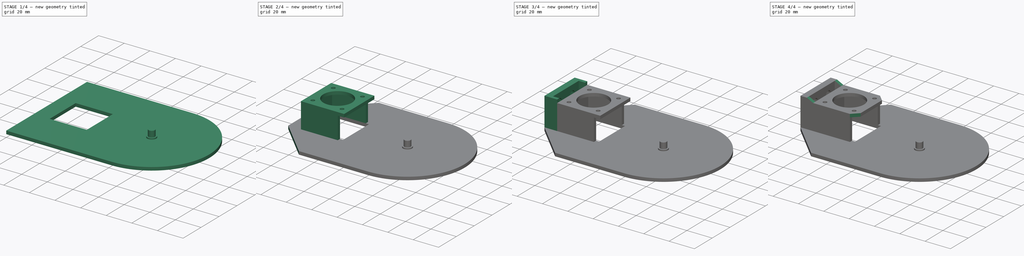
[diagram: build sequence overview — one tinted view per stage of 4, left to right]
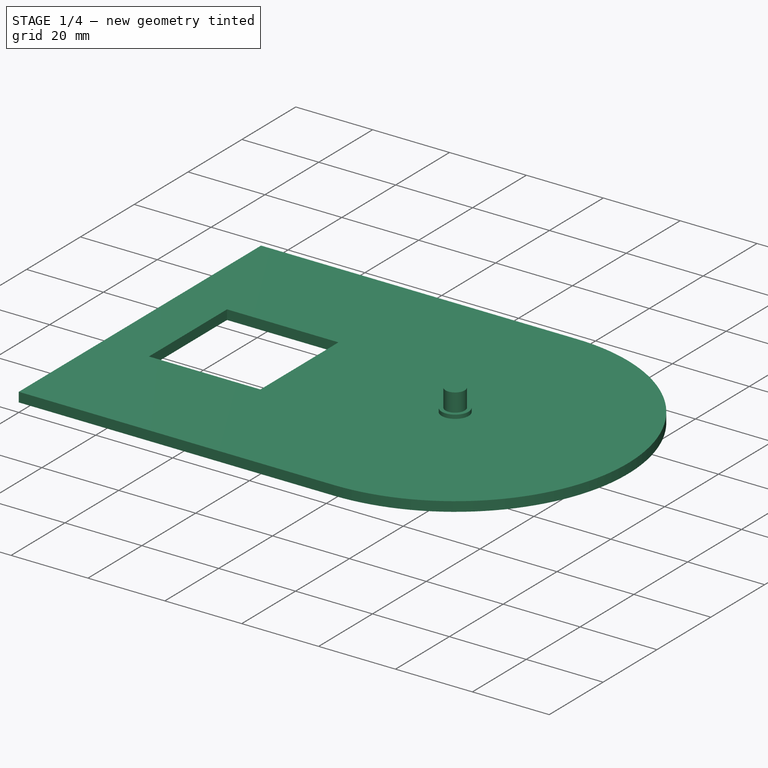
[diagram: stage 1 of 4 — iso view after this stage's code; geometry added in this stage tinted green]
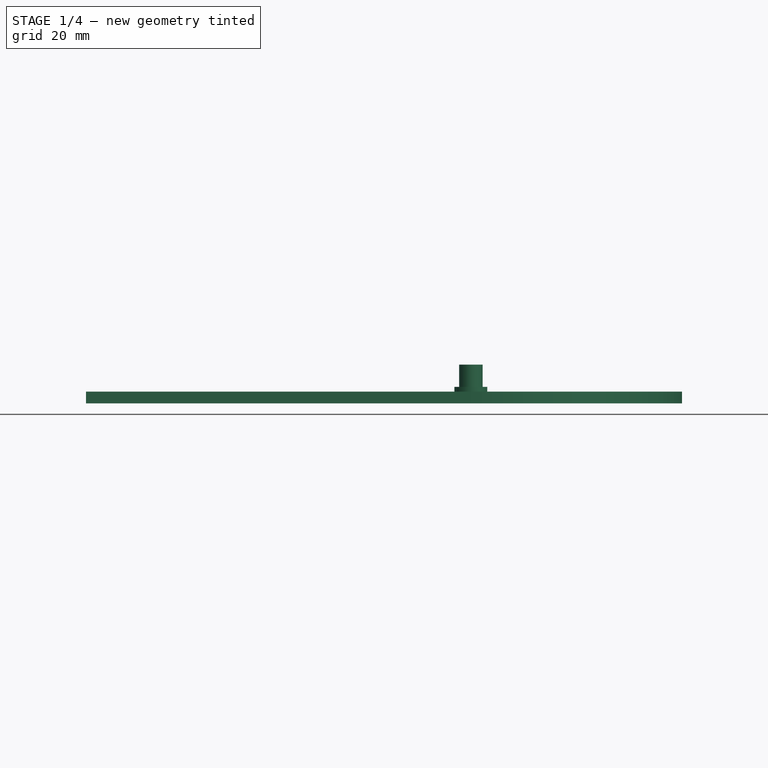
[diagram: stage 1 of 4 — front view after this stage's code; geometry added in this stage tinted green]
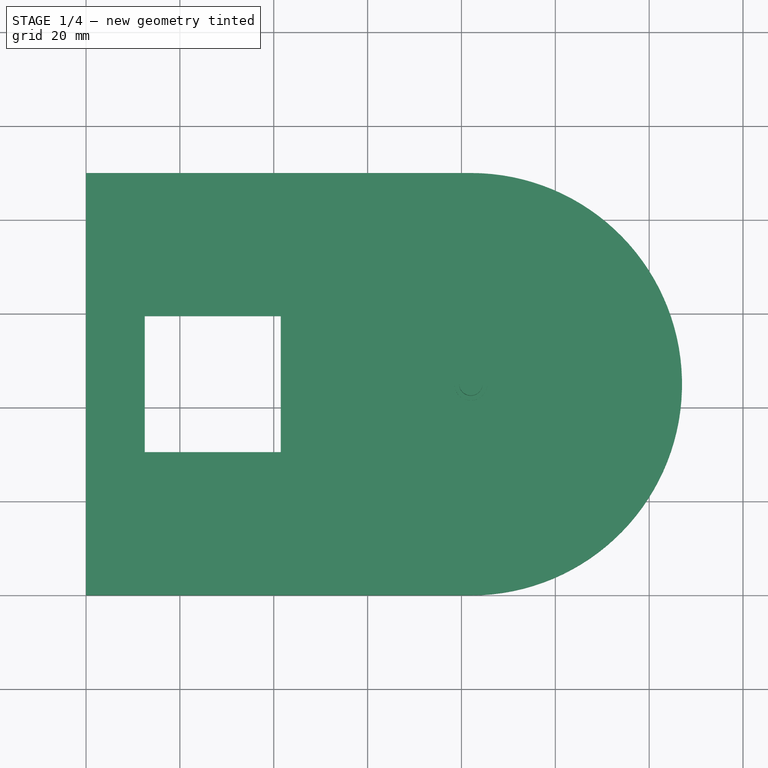
[diagram: stage 1 of 4 — top view after this stage's code; geometry added in this stage tinted green]
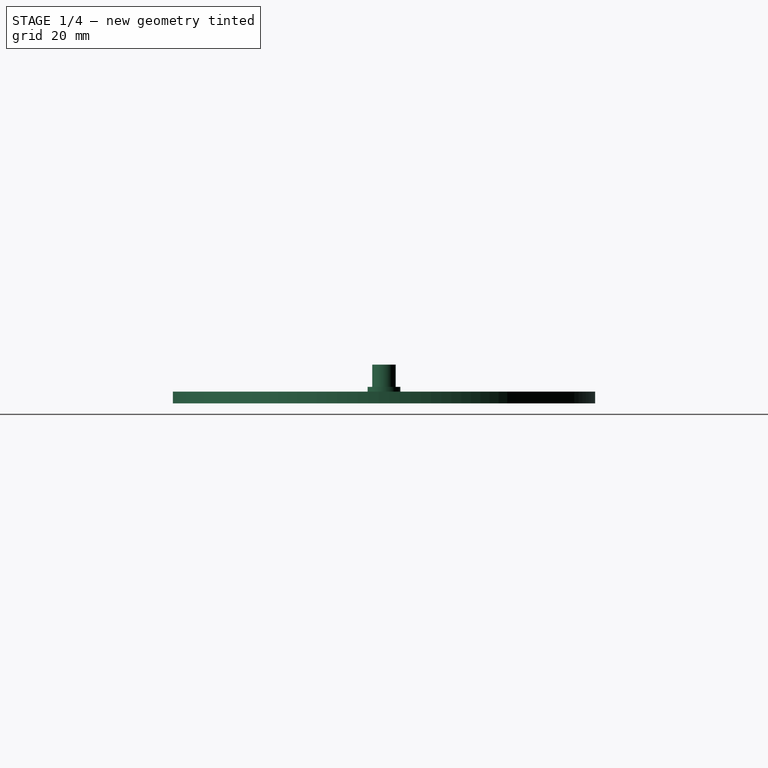
[diagram: stage 1 of 4 — right view after this stage's code; geometry added in this stage tinted green]
FCSTD DOCUMENT  (FreeCAD 0.19R)
Label: c-axis-motor-mount
License: All rights reserved
LicenseURL: http://en.wikipedia.org/wiki/All_rights_reserved
objects: Sketcher::SketchObject×7, PartDesign::Pad×6, PartDesign::Chamfer×4, PartDesign::Pocket×1, PartDesign::Body×1
note: 30 computed .brp shape members not serialized (recipe doc carries the construction recipe); baked Part::Feature solids carry a one-line shape summary decoded from their .brp

FEATURE [Sketcher::SketchObject] Sketch
  FullyConstrained = true
  MapMode = 5
  Support = -> [XY_Plane]
  sketch-geometry (18):
    g0: LineSegment StartX=0 StartY=0 StartZ=0 EndX=82 EndY=0 EndZ=0
    g1: LineSegment StartX=82 StartY=0 StartZ=0 EndX=82 EndY=90 EndZ=0
    g2: LineSegment StartX=82 StartY=90 StartZ=0 EndX=0 EndY=90 EndZ=0
    g3: LineSegment StartX=0 StartY=90 StartZ=0 EndX=0 EndY=0 EndZ=0
    g4: GeomPoint X=82 Y=45 Z=0
    g5: ArcOfCircle CenterX=82 CenterY=45 CenterZ=0 NormalX=0 NormalY=0 NormalZ=1 AngleXU=0 Radius=45 StartAngle=4.71239 EndAngle=7.85398
    g6: LineSegment StartX=82 StartY=45 StartZ=0 EndX=0 EndY=45 EndZ=0
    g7: LineSegment StartX=10 StartY=62 StartZ=0 EndX=44 EndY=62 EndZ=0
    g8: LineSegment StartX=44 StartY=62 StartZ=0 EndX=44 EndY=28 EndZ=0
    g9: LineSegment StartX=44 StartY=28 StartZ=0 EndX=10 EndY=28 EndZ=0
    g10: LineSegment StartX=10 StartY=28 StartZ=0 EndX=10 EndY=62 EndZ=0
    g11: LineSegment StartX=10 StartY=28 StartZ=0 EndX=44 EndY=62 EndZ=0
    g12: LineSegment StartX=44 StartY=28 StartZ=0 EndX=10 EndY=62 EndZ=0
    g13: GeomPoint X=27 Y=45 Z=0
    g14: LineSegment StartX=41.5 StartY=59.5 StartZ=0 EndX=12.5 EndY=59.5 EndZ=0
    g15: LineSegment StartX=12.5 StartY=59.5 StartZ=0 EndX=12.5 EndY=30.5 EndZ=0
    g16: LineSegment StartX=12.5 StartY=30.5 StartZ=0 EndX=41.5 EndY=30.5 EndZ=0
    g17: LineSegment StartX=41.5 StartY=30.5 StartZ=0 EndX=41.5 EndY=59.5 EndZ=0
  constraints (48):
    c: Coincident(g0,g1)
    c: Coincident(g1,g2)
    c: Coincident(g2,g3)
    c: Coincident(g3,g0)
    c: Horizontal(g0)
    c: Horizontal(g2)
    c: Vertical(g1)
    c: Vertical(g3)
    c: Coincident(g0,g-1)
    c: Coincident(g5,g4)
    c: Coincident(g5,g2)
    c: Coincident(g5,g0)
    c: PointOnObject(g5,g1)
    c: DistanceY(g3,g3) = 90
    c: Coincident(g6,g5)
    c: PointOnObject(g6,g3)
    c: Horizontal(g6)
    c: Coincident(g7,g8)
    c: Coincident(g8,g9)
    c: Coincident(g9,g10)
    c: Coincident(g10,g7)
    c: Horizontal(g7)
    c: Horizontal(g9)
    c: Vertical(g8)
    c: Vertical(g10)
    c: Equal(g7,g10)
    c: DistanceX(g7,g7) = 34
    c: Coincident(g11,g9)
    c: Coincident(g11,g7)
    c: Coincident(g12,g8)
    c: Coincident(g12,g7)
    c: PointOnObject(g13,g11)
    c: PointOnObject(g13,g12)
    c: PointOnObject(g13,g6)
    c: DistanceX(g13,g5) = 55
    c: DistanceX(g2,g7) = 10
    c: Coincident(g14,g15)
    c: Coincident(g15,g16)
    c: Coincident(g16,g17)
    c: Coincident(g17,g14)
    c: Horizontal(g14)
    c: Horizontal(g16)
    c: Vertical(g15)
    c: Vertical(g17)
    c: PointOnObject(g15,g11)
    c: PointOnObject(g14,g11)
    c: DistanceX(g14,g14) = 29
    c: PointOnObject(g14,g12)
FEATURE [PartDesign::Pad] Pad
  Direction = (1,1,1)
  Length = 2.5
  Length2 = 100
  Profile = -> Sketch
  Type = 0
FEATURE [Sketcher::SketchObject] Sketch001
  FullyConstrained = true
  MapMode = 5
  Placement = pos=(0,0,2.5) rot=(0,0,1;0rad)
  Support = -> [Pad]
  sketch-geometry (15):
    g0: LineSegment StartX=0 StartY=0 StartZ=0 EndX=82 EndY=0 EndZ=0
    g1: LineSegment StartX=82 StartY=0 StartZ=0 EndX=82 EndY=90 EndZ=0
    g2: LineSegment StartX=82 StartY=90 StartZ=0 EndX=0 EndY=90 EndZ=0
    g3: LineSegment StartX=0 StartY=90 StartZ=0 EndX=0 EndY=0 EndZ=0
    g4: GeomPoint X=82 Y=45 Z=0
    g5: ArcOfCircle CenterX=82 CenterY=45 CenterZ=0 NormalX=0 NormalY=0 NormalZ=1 AngleXU=0 Radius=45 StartAngle=4.71239 EndAngle=7.85398
    g6: LineSegment StartX=82 StartY=45 StartZ=0 EndX=0 EndY=45 EndZ=0
    g7: LineSegment StartX=10 StartY=62 StartZ=0 EndX=44 EndY=62 EndZ=0
    g8: LineSegment StartX=44 StartY=62 StartZ=0 EndX=44 EndY=28 EndZ=0
    g9: LineSegment StartX=44 StartY=28 StartZ=0 EndX=10 EndY=28 EndZ=0
    g10: LineSegment StartX=10 StartY=28 StartZ=0 EndX=10 EndY=62 EndZ=0
    g11: LineSegment StartX=44 StartY=62 StartZ=0 EndX=10 EndY=28 EndZ=0
    g12: LineSegment StartX=10 StartY=62 StartZ=0 EndX=44 EndY=28 EndZ=0
    g13: GeomPoint X=27 Y=45 Z=0
    g14: Circle CenterX=82 CenterY=45 CenterZ=0 NormalX=0 NormalY=0 NormalZ=1 AngleXU=0 Radius=3.5
  constraints (38):
    c: Coincident(g0,g1)
    c: Coincident(g1,g2)
    c: Coincident(g2,g3)
    c: Coincident(g3,g0)
    c: Horizontal(g0)
    c: Horizontal(g2)
    c: Vertical(g1)
    c: Vertical(g3)
    c: Coincident(g0,g-1)
    c: PointOnObject(g4,g1)
    c: Coincident(g5,g4)
    c: Coincident(g5,g1)
    c: Coincident(g5,g0)
    c: DistanceY(g3,g3) = 90
    c: Coincident(g6,g4)
    c: PointOnObject(g6,g3)
    c: Horizontal(g6)
    c: Coincident(g7,g8)
    c: Coincident(g8,g9)
    c: Coincident(g9,g10)
    c: Coincident(g10,g7)
    c: Horizontal(g7)
    c: Horizontal(g9)
    c: Vertical(g8)
    c: Vertical(g10)
    c: Equal(g7,g10)
    c: Coincident(g11,g7)
    c: Coincident(g11,g9)
    c: Coincident(g12,g7)
    c: Coincident(g12,g8)
    c: PointOnObject(g13,g11)
    c: PointOnObject(g13,g12)
    c: PointOnObject(g13,g6)
    c: DistanceX(g7,g7) = 34
    c: DistanceX(g13,g4) = 55
    c: DistanceX(g2,g7) = 10
    c: Coincident(g14,g4)
    c: Diameter(g14) = 7
FEATURE [PartDesign::Pad] Pad001
  BaseFeature = -> Pad
  Direction = (1,1,1)
  Length = 1
  Length2 = 100
  Profile = -> Sketch001
  Type = 0
FEATURE [Sketcher::SketchObject] Sketch002
  FullyConstrained = true
  MapMode = 5
  Placement = pos=(0,0,3.5) rot=(0,0,1;0rad)
  Support = -> [Pad001]
  sketch-geometry (15):
    g0: LineSegment StartX=0 StartY=0 StartZ=0 EndX=82 EndY=0 EndZ=0
    g1: LineSegment StartX=82 StartY=0 StartZ=0 EndX=82 EndY=90 EndZ=0
    g2: LineSegment StartX=82 StartY=90 StartZ=0 EndX=0 EndY=90 EndZ=0
    g3: LineSegment StartX=0 StartY=90 StartZ=0 EndX=0 EndY=0 EndZ=0
    g4: GeomPoint X=82 Y=45 Z=0
    g5: ArcOfCircle CenterX=82 CenterY=45 CenterZ=0 NormalX=0 NormalY=0 NormalZ=1 AngleXU=0 Radius=45 StartAngle=4.71239 EndAngle=7.85398
    g6: LineSegment StartX=82 StartY=45 StartZ=0 EndX=0 EndY=45 EndZ=0
    g7: LineSegment StartX=10 StartY=62 StartZ=0 EndX=44 EndY=62 EndZ=0
    g8: LineSegment StartX=44 StartY=62 StartZ=0 EndX=44 EndY=28 EndZ=0
    g9: LineSegment StartX=44 StartY=28 StartZ=0 EndX=10 EndY=28 EndZ=0
    g10: LineSegment StartX=10 StartY=28 StartZ=0 EndX=10 EndY=62 EndZ=0
    g11: LineSegment StartX=10 StartY=28 StartZ=0 EndX=44 EndY=62 EndZ=0
    g12: LineSegment StartX=44 StartY=28 StartZ=0 EndX=10 EndY=62 EndZ=0
    g13: GeomPoint X=27 Y=45 Z=0
    g14: Circle CenterX=82 CenterY=45 CenterZ=0 NormalX=0 NormalY=0 NormalZ=1 AngleXU=0 Radius=2.5
  constraints (38):
    c: Coincident(g0,g1)
    c: Coincident(g1,g2)
    c: Coincident(g2,g3)
    c: Coincident(g3,g0)
    c: Horizontal(g0)
    c: Horizontal(g2)
    c: Vertical(g1)
    c: Vertical(g3)
    c: Coincident(g0,g-1)
    c: PointOnObject(g4,g1)
    c: Coincident(g5,g4)
    c: Coincident(g5,g1)
    c: Coincident(g5,g0)
    c: Coincident(g6,g4)
    c: PointOnObject(g6,g3)
    c: Horizontal(g6)
    c: DistanceY(g3,g3) = 90
    c: Coincident(g7,g8)
    c: Coincident(g8,g9)
    c: Coincident(g9,g10)
    c: Coincident(g10,g7)
    c: Horizontal(g7)
    c: Horizontal(g9)
    c: Vertical(g8)
    c: Vertical(g10)
    c: Coincident(g11,g9)
    c: Coincident(g11,g7)
    c: Coincident(g12,g8)
    c: Coincident(g12,g7)
    c: Equal(g10,g7)
    c: PointOnObject(g13,g11)
    c: PointOnObject(g13,g12)
    c: PointOnObject(g13,g6)
    c: DistanceX(g7,g7) = 34
    c: DistanceX(g13,g4) = 55
    c: DistanceX(g2,g7) = 10
    c: Coincident(g14,g4)
    c: Diameter(g14) = 5
FEATURE [PartDesign::Pad] Pad002
  BaseFeature = -> Pad001
  Direction = (1,1,1)
  Length = 4.75
  Length2 = 100
  Profile = -> Sketch002
  Type = 0
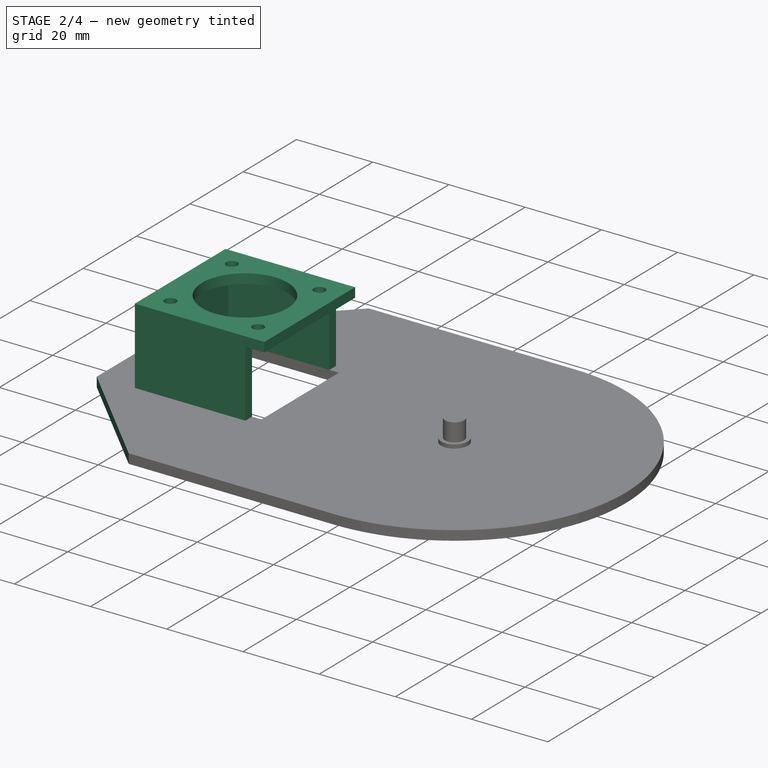
[diagram: stage 2 of 4 — iso view after this stage's code; geometry added in this stage tinted green]
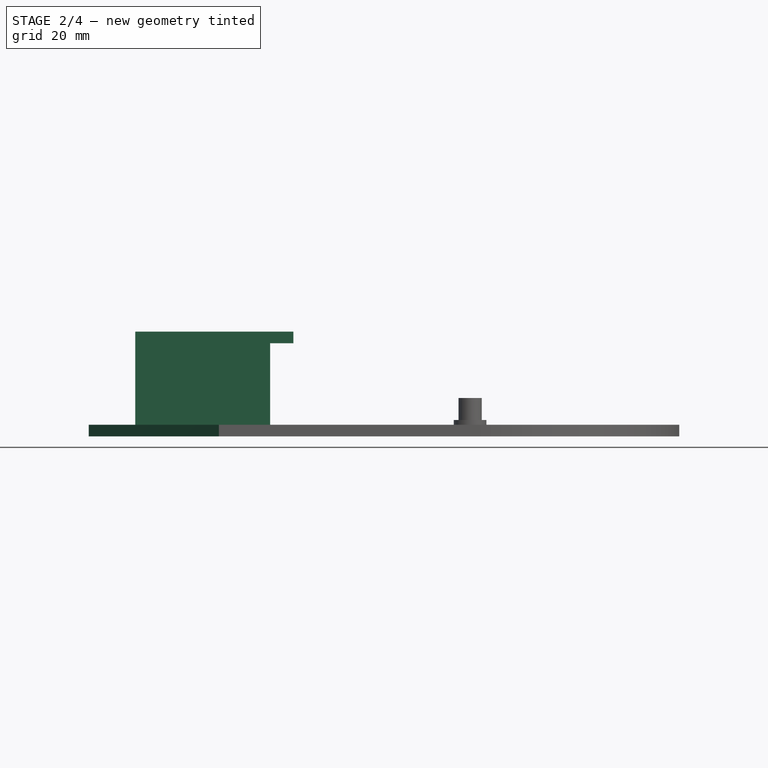
[diagram: stage 2 of 4 — front view after this stage's code; geometry added in this stage tinted green]
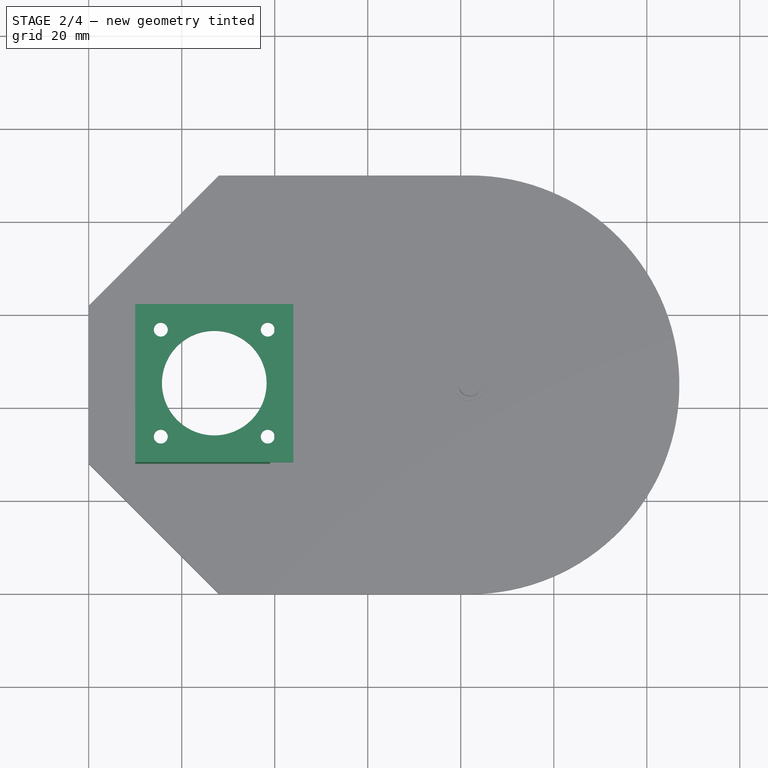
[diagram: stage 2 of 4 — top view after this stage's code; geometry added in this stage tinted green]
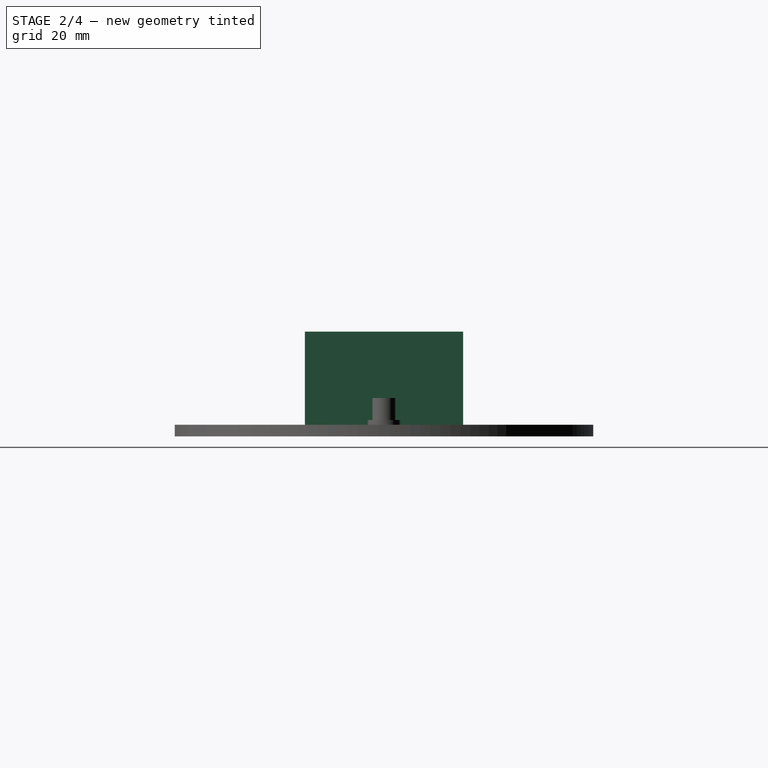
[diagram: stage 2 of 4 — right view after this stage's code; geometry added in this stage tinted green]
FEATURE [Sketcher::SketchObject] Sketch003
  FullyConstrained = true
  MapMode = 5
  Placement = pos=(0,0,2.5) rot=(0,0,1;0rad)
  Support = -> [Pad002]
  sketch-geometry (21):
    g0: LineSegment StartX=0 StartY=0 StartZ=0 EndX=82 EndY=0 EndZ=0
    g1: LineSegment StartX=82 StartY=0 StartZ=0 EndX=82 EndY=90 EndZ=0
    g2: LineSegment StartX=82 StartY=90 StartZ=0 EndX=0 EndY=90 EndZ=0
    g3: LineSegment StartX=0 StartY=90 StartZ=0 EndX=0 EndY=0 EndZ=0
    g4: GeomPoint X=82 Y=45 Z=0
    g5: ArcOfCircle CenterX=82 CenterY=45 CenterZ=0 NormalX=0 NormalY=0 NormalZ=1 AngleXU=0 Radius=45 StartAngle=4.71239 EndAngle=7.85398
    g6: LineSegment StartX=82 StartY=45 StartZ=0 EndX=0 EndY=45 EndZ=0
    g7: LineSegment StartX=10 StartY=62 StartZ=0 EndX=44 EndY=62 EndZ=0
    g8: LineSegment StartX=44 StartY=62 StartZ=0 EndX=44 EndY=28 EndZ=0
    g9: LineSegment StartX=44 StartY=28 StartZ=0 EndX=10 EndY=28 EndZ=0
    g10: LineSegment StartX=10 StartY=28 StartZ=0 EndX=10 EndY=62 EndZ=0
    g11: LineSegment StartX=10 StartY=28 StartZ=0 EndX=44 EndY=62 EndZ=0
    g12: LineSegment StartX=44 StartY=28 StartZ=0 EndX=10 EndY=62 EndZ=0
    g13: GeomPoint X=27 Y=45 Z=0
    g14: LineSegment StartX=12.5 StartY=59.5 StartZ=0 EndX=12.5 EndY=30.5 EndZ=0
    g15: LineSegment StartX=12.5 StartY=30.5 StartZ=0 EndX=39 EndY=30.5 EndZ=0
    g16: LineSegment StartX=12.5 StartY=59.5 StartZ=0 EndX=39 EndY=59.5 EndZ=0
    g17: LineSegment StartX=39 StartY=59.5 StartZ=0 EndX=39 EndY=62 EndZ=0
    g18: LineSegment StartX=39 StartY=30.5 StartZ=0 EndX=39 EndY=28 EndZ=0
    g19: LineSegment StartX=39 StartY=62 StartZ=0 EndX=10 EndY=62 EndZ=0
    g20: LineSegment StartX=39 StartY=28 StartZ=0 EndX=10 EndY=28 EndZ=0
  constraints (56):
    c: Coincident(g0,g1)
    c: Coincident(g1,g2)
    c: Coincident(g2,g3)
    c: Coincident(g3,g0)
    c: Horizontal(g0)
    c: Horizontal(g2)
    c: Vertical(g1)
    c: Vertical(g3)
    c: Coincident(g0,g-1)
    c: PointOnObject(g4,g1)
    c: Coincident(g5,g4)
    c: Coincident(g5,g1)
    c: Coincident(g5,g0)
    c: Coincident(g6,g4)
    c: PointOnObject(g6,g3)
    c: Horizontal(g6)
    c: Coincident(g7,g8)
    c: Coincident(g8,g9)
    c: Coincident(g9,g10)
    c: Coincident(g10,g7)
    c: Horizontal(g7)
    c: Horizontal(g9)
    c: Vertical(g8)
    c: Vertical(g10)
    c: Coincident(g11,g9)
    c: Coincident(g11,g7)
    c: Coincident(g12,g8)
    c: Coincident(g12,g7)
    c: PointOnObject(g13,g11)
    c: PointOnObject(g13,g12)
    c: PointOnObject(g13,g6)
    c: DistanceX(g13,g4) = 55
    c: DistanceX(g2,g7) = 10
    c: DistanceY(g3,g3) = 90
    c: Vertical(g14)
    c: Coincident(g15,g14)
    c: Horizontal(g15)
    c: DistanceX(g9,g14) = 2.5
    c: DistanceY(g9,g15) = 2.5
    c: DistanceY(g10,g10) = 34
    c: Coincident(g16,g14)
    c: Horizontal(g16)
    c: Coincident(g17,g16)
    c: PointOnObject(g17,g7)
    c: Vertical(g17)
    c: Coincident(g18,g15)
    c: PointOnObject(g18,g9)
    c: Vertical(g18)
    c: Coincident(g19,g17)
    c: Coincident(g19,g10)
    c: Coincident(g20,g18)
    c: Coincident(g20,g10)
    c: Equal(g19,g20)
    c: Equal(g10,g7)
    c: DistanceX(g19,g19) = 29
    c: Equal(g18,g17)
FEATURE [PartDesign::Pad] Pad003
  BaseFeature = -> Pad002
  Direction = (1,1,1)
  Length = 17.5
  Length2 = 100
  Profile = -> Sketch003
  Type = 0
FEATURE [Sketcher::SketchObject] Sketch004
  FullyConstrained = true
  MapMode = 5
  Placement = pos=(0,0,20) rot=(0,0,1;0rad)
  Support = -> [Pad003]
  sketch-geometry (17):
    g0: LineSegment StartX=10 StartY=62 StartZ=0 EndX=44 EndY=62 EndZ=0
    g1: LineSegment StartX=44 StartY=62 StartZ=0 EndX=44 EndY=28 EndZ=0
    g2: LineSegment StartX=44 StartY=28 StartZ=0 EndX=10 EndY=28 EndZ=0
    g3: LineSegment StartX=10 StartY=28 StartZ=0 EndX=10 EndY=62 EndZ=0
    g4: LineSegment StartX=0 StartY=0 StartZ=0 EndX=0 EndY=90 EndZ=0
    g5: LineSegment StartX=0 StartY=45 StartZ=0 EndX=10 EndY=45 EndZ=0
    g6: LineSegment StartX=10 StartY=28 StartZ=0 EndX=44 EndY=62 EndZ=0
    g7: LineSegment StartX=44 StartY=28 StartZ=0 EndX=10 EndY=62 EndZ=0
    g8: LineSegment StartX=15.5 StartY=56.5 StartZ=0 EndX=38.5 EndY=56.5 EndZ=0
    g9: LineSegment StartX=38.5 StartY=56.5 StartZ=0 EndX=38.5 EndY=33.5 EndZ=0
    g10: LineSegment StartX=38.5 StartY=33.5 StartZ=0 EndX=15.5 EndY=33.5 EndZ=0
    g11: LineSegment StartX=15.5 StartY=33.5 StartZ=0 EndX=15.5 EndY=56.5 EndZ=0
    g12: Circle CenterX=27 CenterY=45 CenterZ=0 NormalX=0 NormalY=0 NormalZ=1 AngleXU=0 Radius=11.25
    g13: Circle CenterX=15.5 CenterY=56.5 CenterZ=0 NormalX=0 NormalY=0 NormalZ=1 AngleXU=0 Radius=1.5
    g14: Circle CenterX=38.5 CenterY=56.5 CenterZ=0 NormalX=0 NormalY=0 NormalZ=1 AngleXU=0 Radius=1.5
    g15: Circle CenterX=38.5 CenterY=33.5 CenterZ=0 NormalX=0 NormalY=0 NormalZ=1 AngleXU=0 Radius=1.5
    g16: Circle CenterX=15.5 CenterY=33.5 CenterZ=0 NormalX=0 NormalY=0 NormalZ=1 AngleXU=0 Radius=1.5
  constraints (44):
    c: Coincident(g0,g1)
    c: Coincident(g1,g2)
    c: Coincident(g2,g3)
    c: Coincident(g3,g0)
    c: Horizontal(g0)
    c: Horizontal(g2)
    c: Vertical(g1)
    c: Vertical(g3)
    c: Coincident(g4,g-1)
    c: PointOnObject(g4,g-2)
    c: Horizontal(g5)
    c: DistanceX(g5,g5) = 10
    c: DistanceY(g4,g4) = 90
    c: Symmetric(g-1,g4,g5)
    c: Equal(g3,g0)
    c: DistanceX(g0,g0) = 34
    c: Coincident(g6,g2)
    c: Coincident(g6,g0)
    c: Coincident(g7,g1)
    c: Coincident(g7,g0)
    c: Coincident(g8,g9)
    c: Coincident(g9,g10)
    c: Coincident(g10,g11)
    c: Coincident(g11,g8)
    c: Horizontal(g8)
    c: Horizontal(g10)
    c: Vertical(g9)
    c: Vertical(g11)
    c: PointOnObject(g8,g7)
    c: PointOnObject(g9,g7)
    c: PointOnObject(g8,g6)
    c: Symmetric(g2,g0,g5)
    c: PointOnObject(g12,g6)
    c: PointOnObject(g12,g7)
    c: Diameter(g12) = 22.5
    c: DistanceX(g8,g8) = 23
    c: Coincident(g13,g8)
    c: Coincident(g14,g8)
    c: Coincident(g15,g9)
    c: Coincident(g16,g10)
    c: Equal(g16,g15)
    c: Equal(g15,g14)
    c: Equal(g14,g13)
    c: Diameter(g14) = 3
FEATURE [PartDesign::Pad] Pad004
  BaseFeature = -> Pad003
  Direction = (1,1,1)
  Length = 2.5
  Length2 = 100
  Profile = -> Sketch004
  Type = 0
FEATURE [PartDesign::Chamfer] Chamfer
  Angle = 45
  Base = -> Pad004 [Edge1,Edge5]
  BaseFeature = -> Pad004
  ChamferType = 0
  FlipDirection = false
  Size = 28
  Size2 = 1
  SupportTransform = false
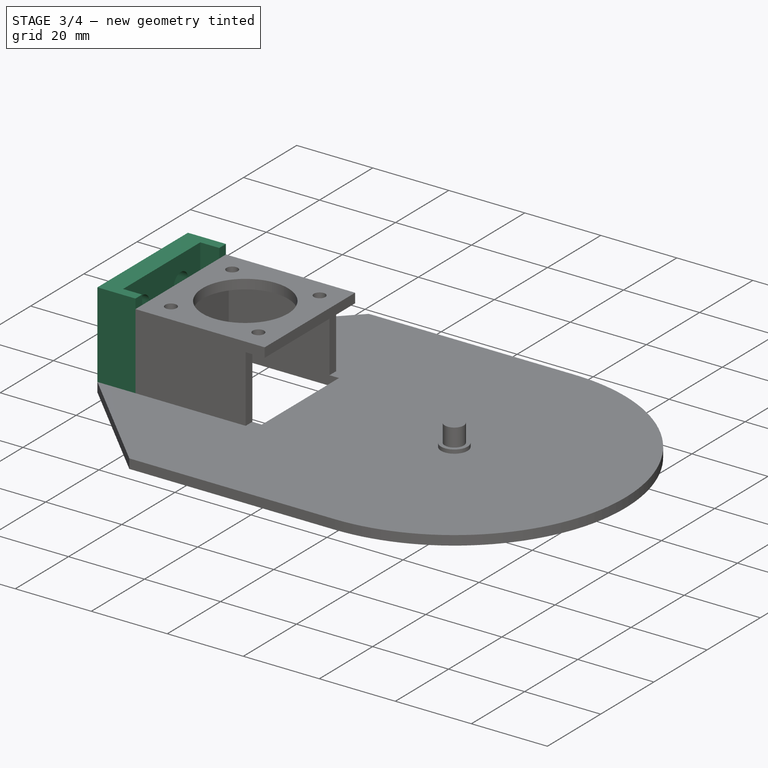
[diagram: stage 3 of 4 — iso view after this stage's code; geometry added in this stage tinted green]
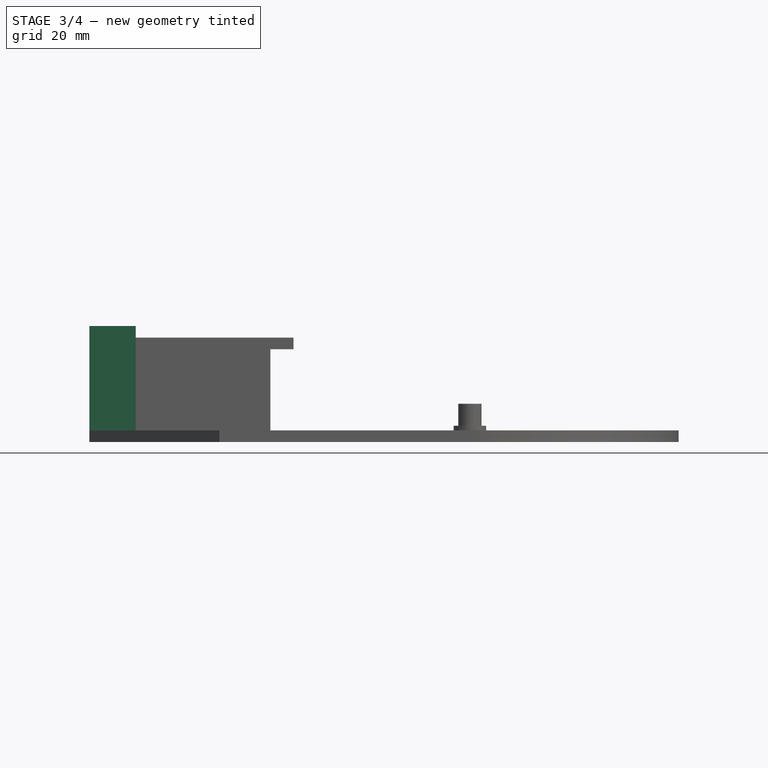
[diagram: stage 3 of 4 — front view after this stage's code; geometry added in this stage tinted green]
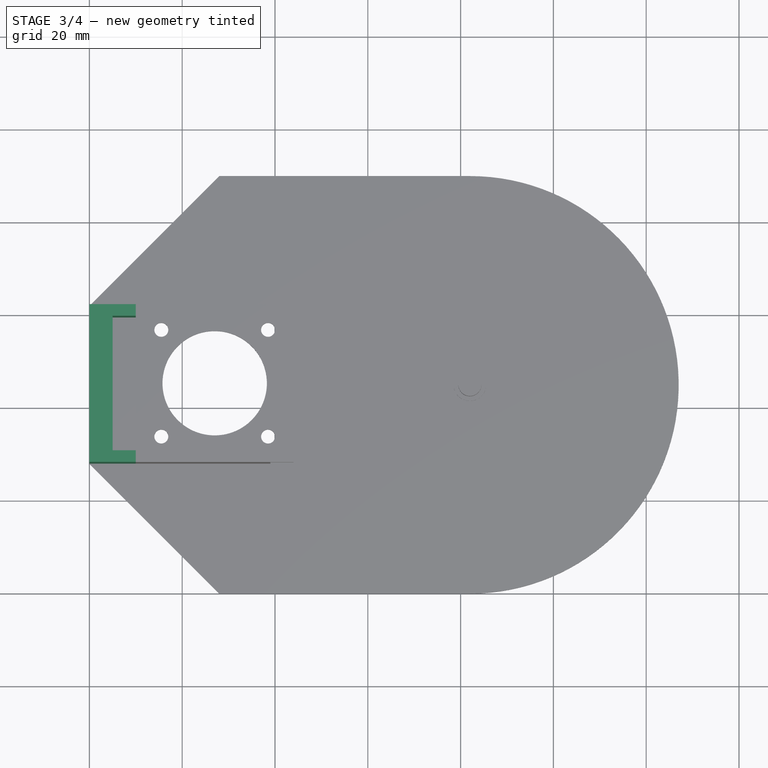
[diagram: stage 3 of 4 — top view after this stage's code; geometry added in this stage tinted green]
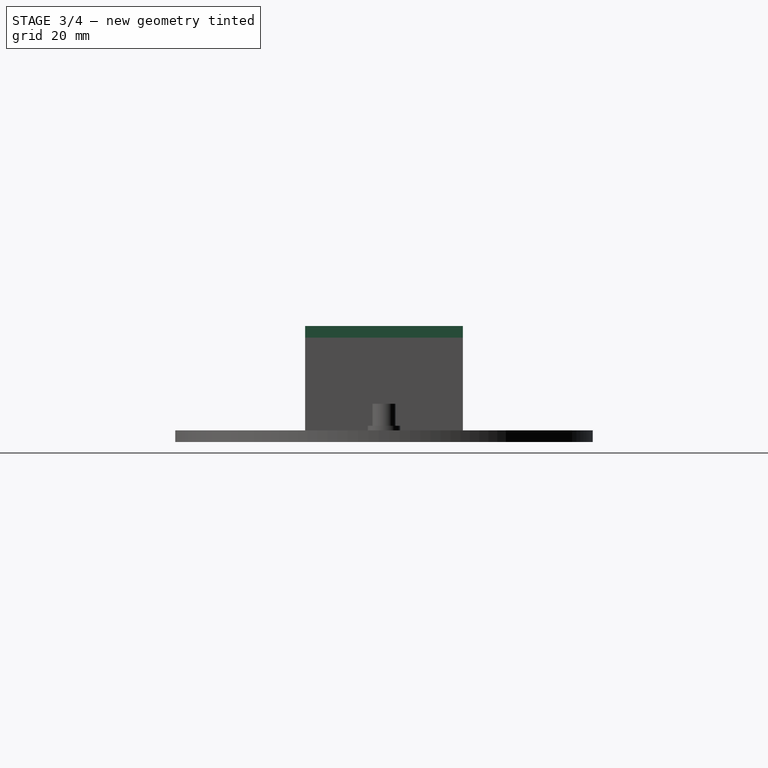
[diagram: stage 3 of 4 — right view after this stage's code; geometry added in this stage tinted green]
FEATURE [Sketcher::SketchObject] Sketch005
  FullyConstrained = true
  MapMode = 5
  Placement = pos=(0,0,2.5) rot=(0,0,1;0rad)
  Support = -> [Chamfer]
  sketch-geometry (10):
    g0: LineSegment StartX=0 StartY=28 StartZ=0 EndX=10 EndY=28 EndZ=0
    g1: LineSegment StartX=10 StartY=62 StartZ=0 EndX=0 EndY=62 EndZ=0
    g2: LineSegment StartX=0 StartY=62 StartZ=0 EndX=0 EndY=28 EndZ=0
    g3: LineSegment StartX=0 StartY=0 StartZ=0 EndX=7.47e-14 EndY=90 EndZ=0
    g4: GeomPoint X=0 Y=45 Z=0
    g5: LineSegment StartX=10 StartY=62 StartZ=0 EndX=10 EndY=59.5 EndZ=0
    g6: LineSegment StartX=10 StartY=59.5 StartZ=0 EndX=5 EndY=59.5 EndZ=0
    g7: LineSegment StartX=5 StartY=59.5 StartZ=0 EndX=5 EndY=30.5 EndZ=0
    g8: LineSegment StartX=5 StartY=30.5 StartZ=0 EndX=10 EndY=30.5 EndZ=0
    g9: LineSegment StartX=10 StartY=30.5 StartZ=0 EndX=10 EndY=28 EndZ=0
  constraints (27):
    c: Coincident(g1,g2)
    c: Coincident(g2,g0)
    c: Horizontal(g0)
    c: Horizontal(g1)
    c: Vertical(g2)
    c: PointOnObject(g0,g-2)
    c: Coincident(g3,g-1)
    c: DistanceY(g3,g3) = 90
    c: Symmetric(g3,g-1,g4)
    c: Symmetric(g1,g0,g4)
    c: DistanceY(g2,g2) = 34
    c: Coincident(g5,g1)
    c: Vertical(g5)
    c: Coincident(g6,g5)
    c: Horizontal(g6)
    c: Coincident(g7,g6)
    c: Vertical(g7)
    c: Coincident(g8,g7)
    c: Horizontal(g8)
    c: Coincident(g9,g8)
    c: Coincident(g9,g0)
    c: Vertical(g9)
    c: Equal(g5,g9)
    c: DistanceY(g5,g5) = 2.5
    c: DistanceX(g1,g6) = 5
    c: Equal(g0,g1)
    c: DistanceX(g0,g0) = 10
FEATURE [PartDesign::Pad] Pad005
  BaseFeature = -> Chamfer
  Direction = (1,1,1)
  Length = 22.5
  Length2 = 100
  Profile = -> Sketch005
  Type = 0
FEATURE [Sketcher::SketchObject] Sketch006
  FullyConstrained = true
  MapMode = 5
  Placement = pos=(0,0,0) rot=(0.57735,-0.57735,-0.57735;2.0944rad)
  Support = -> [Pad005]
  sketch-geometry (29):
    g0: LineSegment StartX=-59.5 StartY=2.5 StartZ=0 EndX=-30.5 EndY=2.5 EndZ=0
    g1: LineSegment StartX=-30.5 StartY=2.5 StartZ=0 EndX=-30.5 EndY=25 EndZ=0
    g2: LineSegment StartX=-30.5 StartY=25 StartZ=0 EndX=-59.5 EndY=25 EndZ=0
    g3: LineSegment StartX=-59.5 StartY=25 StartZ=0 EndX=-59.5 EndY=2.5 EndZ=0
    g4: LineSegment StartX=0 StartY=0 StartZ=0 EndX=-90 EndY=0 EndZ=0
    g5: LineSegment StartX=-45 StartY=0 StartZ=0 EndX=-45 EndY=2.5 EndZ=0
    g6: LineSegment StartX=-45 StartY=25 StartZ=0 EndX=-45 EndY=2.5 EndZ=0
    g7: LineSegment StartX=-59.5 StartY=13.75 StartZ=0 EndX=-30.5 EndY=13.75 EndZ=0
    g8: LineSegment StartX=-52.25 StartY=25 StartZ=0 EndX=-52.25 EndY=2.5 EndZ=0
    g9: LineSegment StartX=-37.75 StartY=25 StartZ=0 EndX=-37.75 EndY=2.5 EndZ=0
    g10: LineSegment StartX=-55 StartY=18 StartZ=0 EndX=-49.5 EndY=18 EndZ=0
    g11: LineSegment StartX=-49.5 StartY=18 StartZ=0 EndX=-49.5 EndY=9.5 EndZ=0
    g12: LineSegment StartX=-49.5 StartY=9.5 StartZ=0 EndX=-55 EndY=9.5 EndZ=0
    g13: LineSegment StartX=-55 StartY=9.5 StartZ=0 EndX=-55 EndY=18 EndZ=0
    g14: LineSegment StartX=-40.5 StartY=18 StartZ=0 EndX=-35 EndY=18 EndZ=0
    g15: LineSegment StartX=-35 StartY=18 StartZ=0 EndX=-35 EndY=9.5 EndZ=0
    g16: LineSegment StartX=-35 StartY=9.5 StartZ=0 EndX=-40.5 EndY=9.5 EndZ=0
    g17: LineSegment StartX=-40.5 StartY=9.5 StartZ=0 EndX=-40.5 EndY=18 EndZ=0
    g18: ArcOfCircle CenterX=-52.25 CenterY=18 CenterZ=0 NormalX=0 NormalY=0 NormalZ=1 AngleXU=0 Radius=2.75 StartAngle=5.5e-15 EndAngle=3.14159
    g19: ArcOfCircle CenterX=-52.25 CenterY=9.5 CenterZ=0 NormalX=0 NormalY=0 NormalZ=1 AngleXU=0 Radius=2.75 StartAngle=3.14159 EndAngle=6.28319
    g20: ArcOfCircle CenterX=-37.75 CenterY=18 CenterZ=0 NormalX=0 NormalY=0 NormalZ=1 AngleXU=0 Radius=2.75 StartAngle=-3.6e-15 EndAngle=3.14159
    g21: ArcOfCircle CenterX=-37.75 CenterY=9.5 CenterZ=0 NormalX=0 NormalY=0 NormalZ=1 AngleXU=0 Radius=2.75 StartAngle=3.14159 EndAngle=6.28319
    g22: LineSegment StartX=-49.5 StartY=18 StartZ=0 EndX=-55 EndY=9.5 EndZ=0
    g23: LineSegment StartX=-55 StartY=18 StartZ=0 EndX=-49.5 EndY=9.5 EndZ=0
    g24: LineSegment StartX=-35 StartY=18 StartZ=0 EndX=-40.5 EndY=9.5 EndZ=0
    g25: LineSegment StartX=-40.5 StartY=18 StartZ=0 EndX=-35 EndY=9.5 EndZ=0
    g26: GeomPoint X=-52.25 Y=13.75 Z=0
    g27: GeomPoint X=-37.75 Y=13.75 Z=0
    g28: GeomPoint X=-52.25 Y=20.75 Z=0
  constraints (79):
    c: Coincident(g0,g1)
    c: Coincident(g1,g2)
    c: Coincident(g2,g3)
    c: Coincident(g3,g0)
    c: Horizontal(g0)
    c: Horizontal(g2)
    c: Vertical(g1)
    c: Vertical(g3)
    c: DistanceX(g2,g2) = 29
    c: DistanceY(g1,g1) = 22.5
    c: Coincident(g4,g-1)
    c: PointOnObject(g4,g-1)
    c: Vertical(g5)
    c: DistanceX(g4,g4) = 90
    c: Symmetric(g4,g-1,g5)
    c: Symmetric(g0,g0,g5)
    c: DistanceY(g5,g5) = 2.5
    c: PointOnObject(g6,g2)
    c: Coincident(g6,g5)
    c: Vertical(g6)
    c: PointOnObject(g7,g1)
    c: Horizontal(g7)
    c: Symmetric(g0,g2,g7)
    c: PointOnObject(g8,g0)
    c: Vertical(g8)
    c: PointOnObject(g9,g0)
    c: Vertical(g9)
    c: Symmetric(g6,g2,g8)
    c: Symmetric(g1,g6,g9)
    c: Coincident(g10,g11)
    c: Coincident(g11,g12)
    c: Coincident(g12,g13)
    c: Coincident(g13,g10)
    c: Horizontal(g10)
    c: Horizontal(g12)
    c: Vertical(g11)
    c: Vertical(g13)
    c: Coincident(g14,g15)
    c: Coincident(g15,g16)
    c: Coincident(g16,g17)
    c: Coincident(g17,g14)
    c: Horizontal(g14)
    c: Horizontal(g16)
    c: Vertical(g15)
    c: Vertical(g17)
    c: Equal(g13,g17)
    c: Equal(g10,g14)
    c: PointOnObject(g18,g10)
    c: Coincident(g18,g10)
    c: Coincident(g18,g10)
    c: PointOnObject(g19,g12)
    c: Coincident(g19,g12)
    c: Coincident(g19,g11)
    c: PointOnObject(g20,g14)
    c: Coincident(g20,g14)
    c: Coincident(g20,g14)
    c: PointOnObject(g21,g16)
    c: Coincident(g21,g16)
    c: Coincident(g21,g15)
    c: Coincident(g22,g10)
    c: Coincident(g22,g12)
    c: Coincident(g23,g10)
    c: Coincident(g23,g11)
    c: Coincident(g24,g14)
    c: Coincident(g24,g16)
    c: Coincident(g25,g14)
    c: Coincident(g25,g15)
    c: PointOnObject(g26,g22)
    c: PointOnObject(g26,g23)
    c: PointOnObject(g26,g8)
    c: PointOnObject(g26,g7)
    c: PointOnObject(g27,g24)
    c: PointOnObject(g27,g25)
    c: PointOnObject(g27,g9)
    c: PointOnObject(g27,g7)
    c: Diameter(g18) = 5.5
    c: PointOnObject(g28,g18)
    c: PointOnObject(g28,g8)
    c: DistanceY(g28,g8) = 4.25
FEATURE [PartDesign::Pocket] Pocket
  BaseFeature = -> Pad005
  Length = 5
  Length2 = 100
  Profile = -> Sketch006
  Type = 2
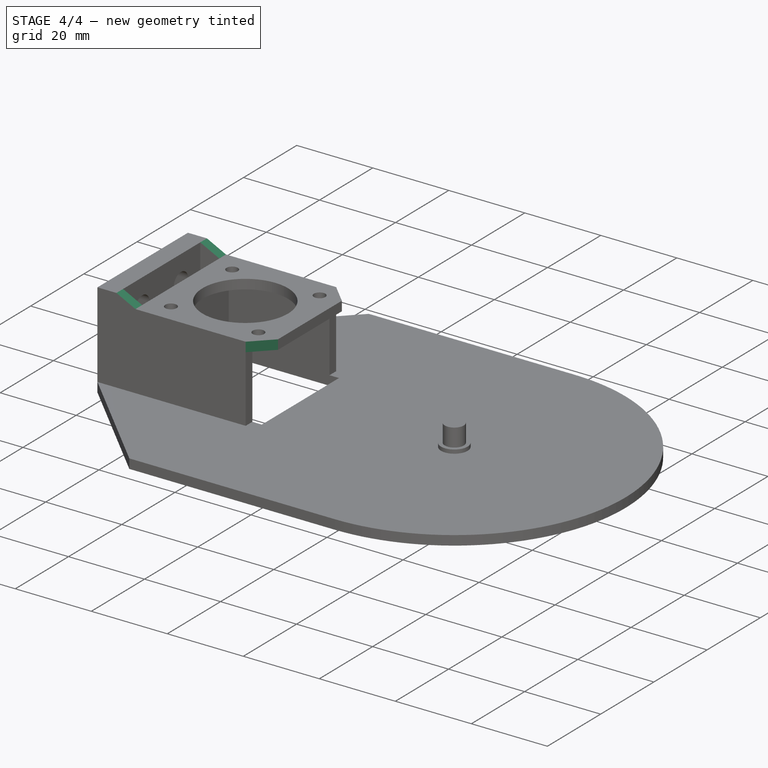
[diagram: stage 4 of 4 — iso view after this stage's code; geometry added in this stage tinted green]
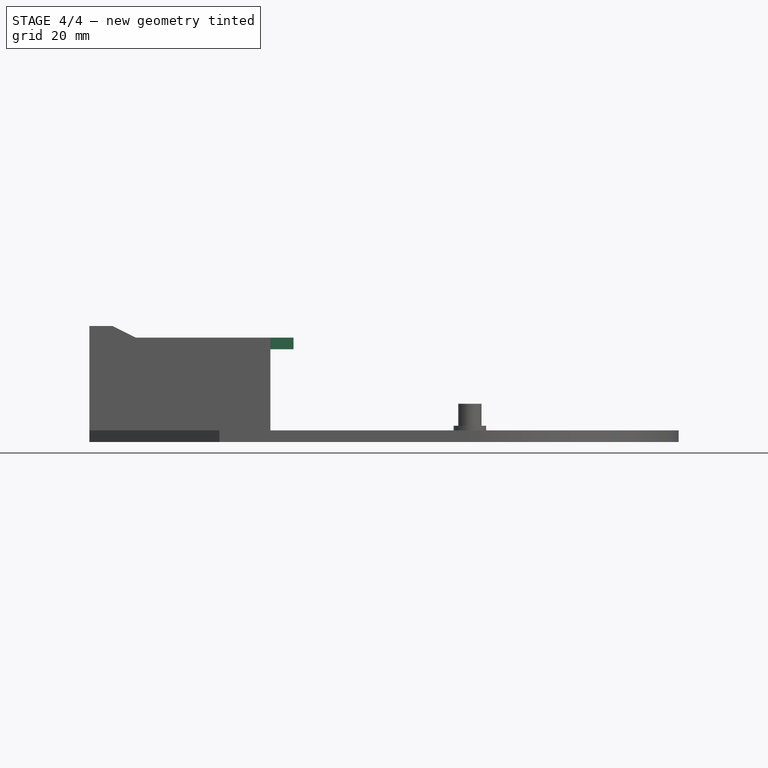
[diagram: stage 4 of 4 — front view after this stage's code; geometry added in this stage tinted green]
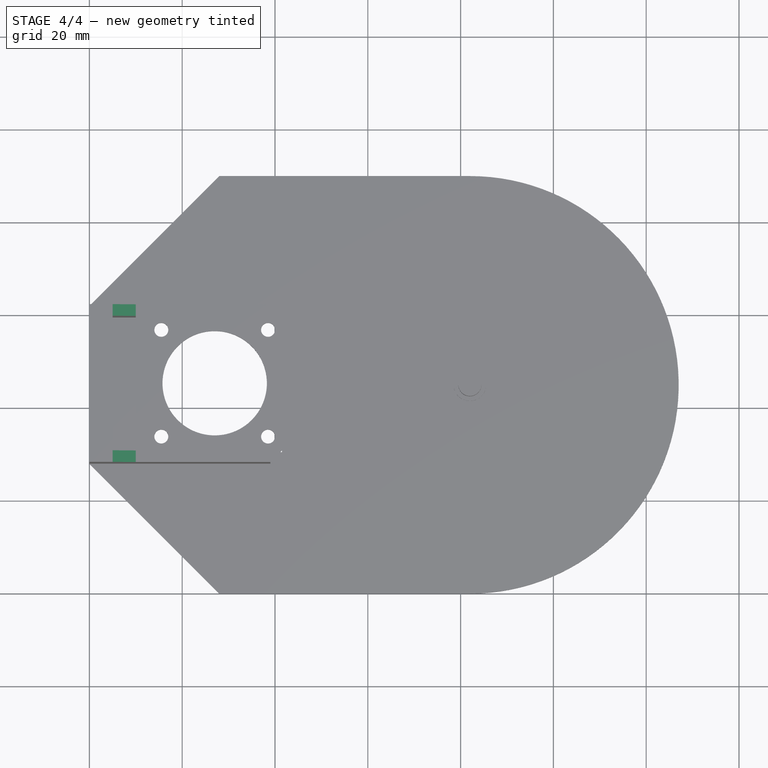
[diagram: stage 4 of 4 — top view after this stage's code; geometry added in this stage tinted green]
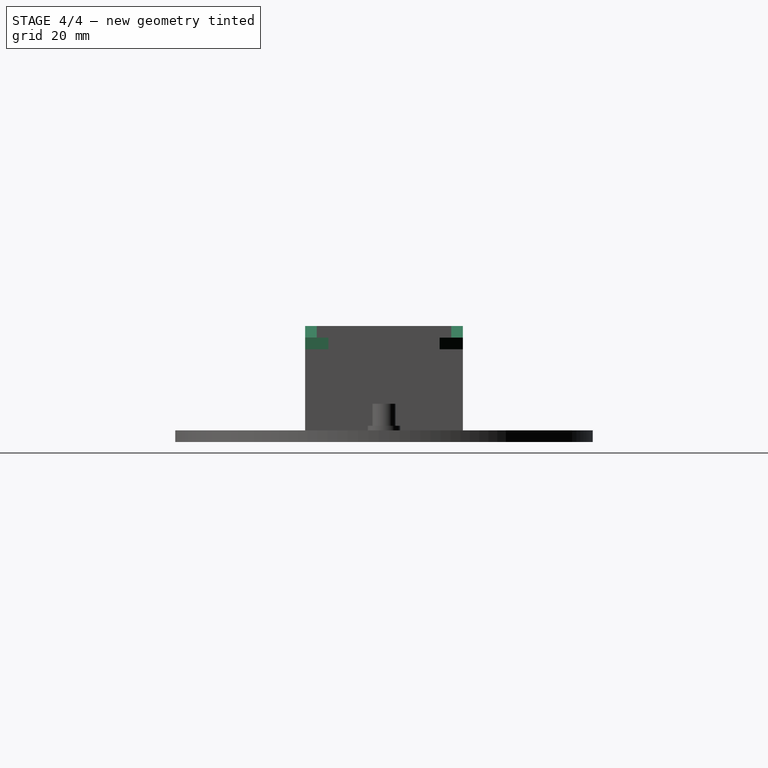
[diagram: stage 4 of 4 — right view after this stage's code; geometry added in this stage tinted green]
FEATURE [PartDesign::Chamfer] Chamfer001
  Angle = 45
  Base = -> Pocket [Edge78]
  BaseFeature = -> Pocket
  ChamferType = 1
  FlipDirection = false
  Size = 2.49
  Size2 = 5
  SupportTransform = false
FEATURE [PartDesign::Chamfer] Chamfer002
  Angle = 45
  Base = -> Chamfer001 [Edge21]
  BaseFeature = -> Chamfer001
  ChamferType = 1
  FlipDirection = false
  Size = 5
  Size2 = 2.49
  SupportTransform = false
FEATURE [PartDesign::Chamfer] Chamfer003
  Angle = 45
  Base = -> Chamfer002 [Edge83,Edge45]
  BaseFeature = -> Chamfer002
  ChamferType = 0
  FlipDirection = false
  Size = 5
  Size2 = 1
  SupportTransform = false
FEATURE [PartDesign::Body] Body
  Group = -> [Sketch,Pad,Sketch001,Pad001,Sketch002,Pad002,Sketch003,Pad003,Sketch004,Pad004,Chamfer,Sketch005,Pad005,Sketch006,Pocket,Chamfer001,Chamfer002,Chamfer003]
  Origin = -> Origin
  Tip = -> Chamfer003
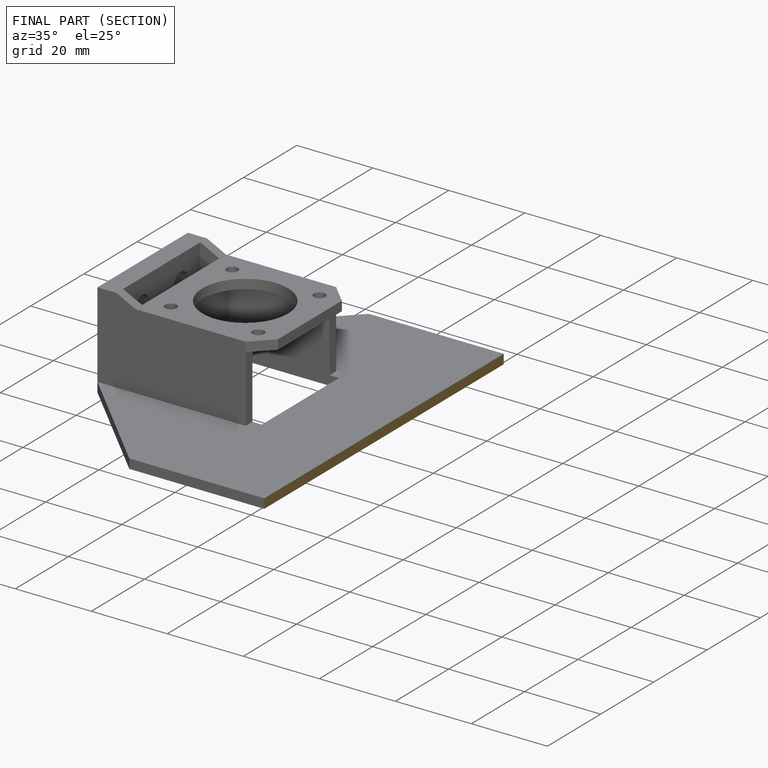
[diagram: finished part — half-section view (interior)]
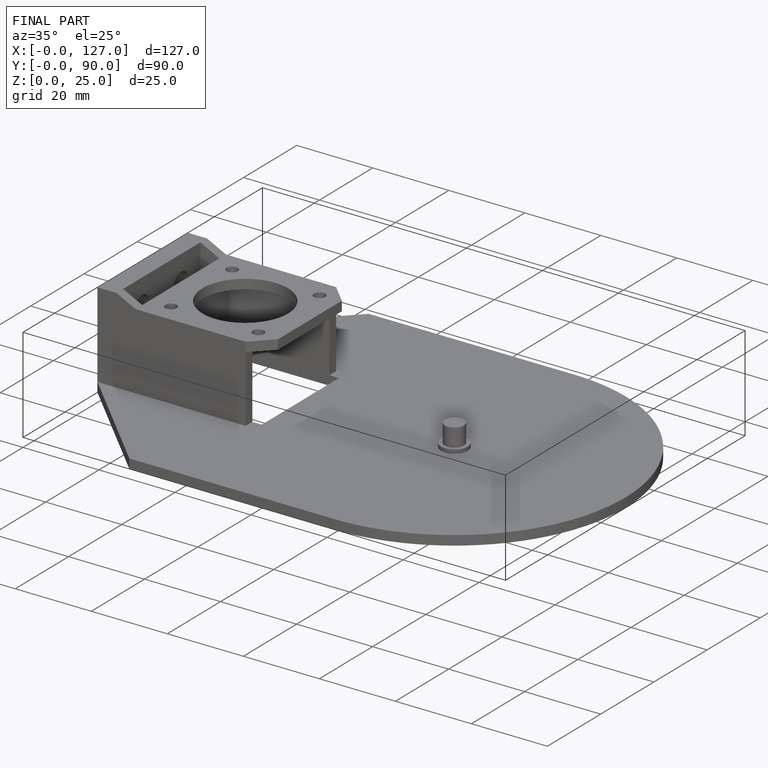
[diagram: finished part — iso view with bounding-box wireframe]
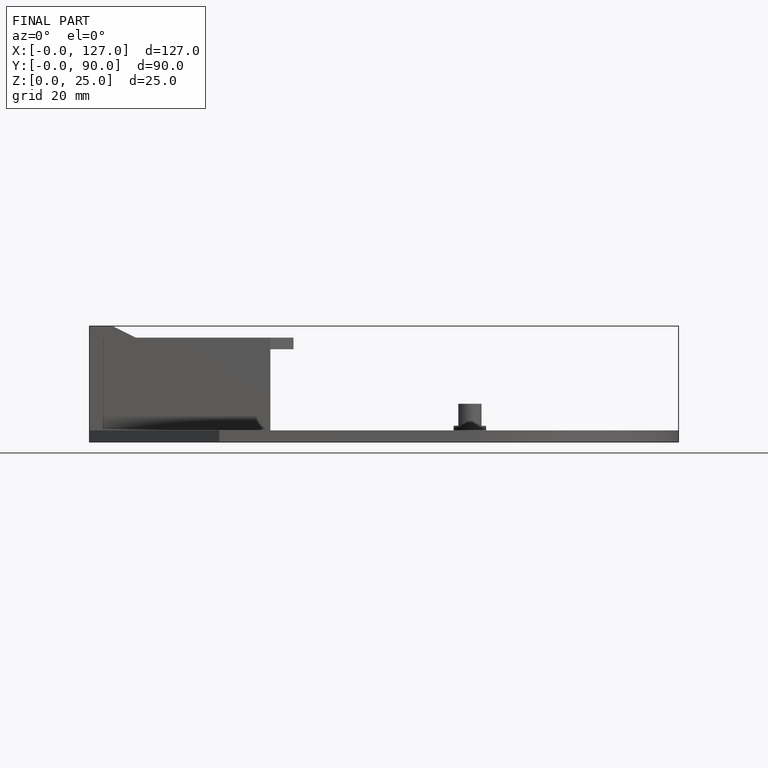
[diagram: finished part — front view with bounding-box wireframe]
